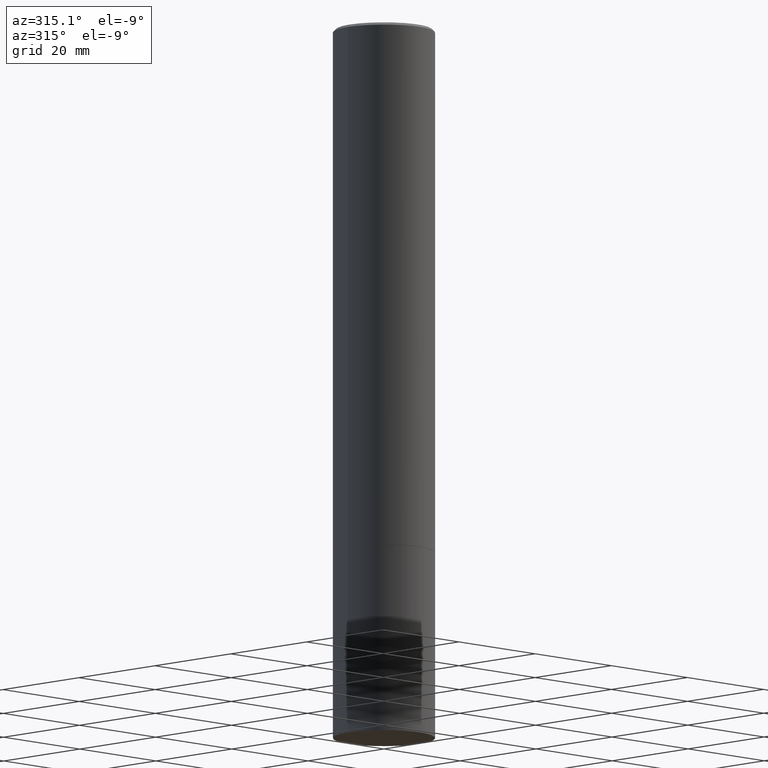
[diagram: clean part render]
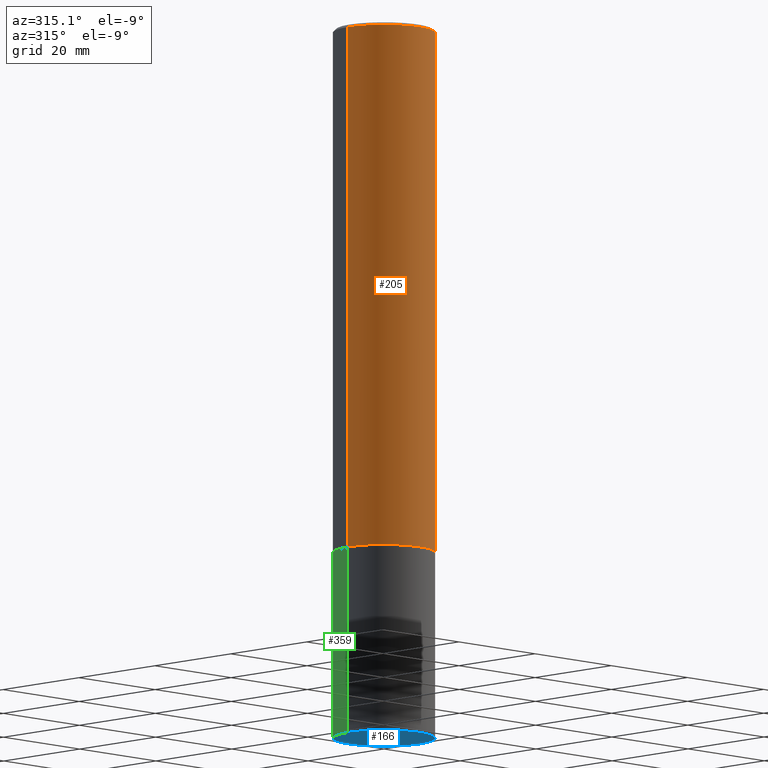
[diagram: same view with three faces highlighted in distinct colors, each labeled with its STEP entity id]
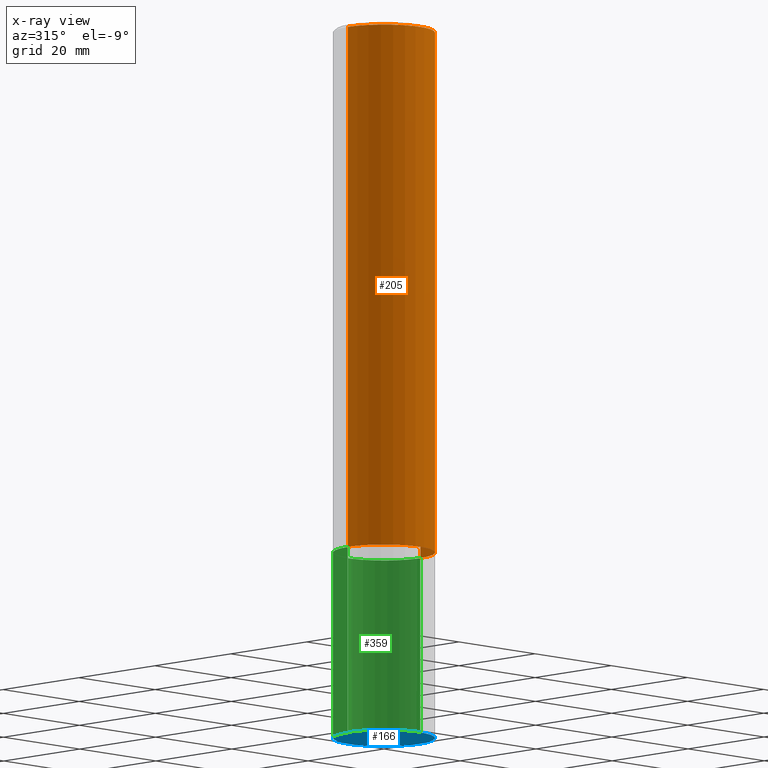
[diagram: x-ray of the same camera — body ghosted, the three highlighted faces saturated]
A machine part, auxiliary view with three faces highlighted in distinct colors.
The next image is the same camera in x-ray (body ghosted, the three faces saturated) — at least one of them is partly hidden behind the body in this view.
Their STEP definitions:

[orange] entity #205 — the highlighted cylindrical surface (partial cylindrical patch) has radius 9.525 mm, axis along (-0, 0, 1).
#7 = EDGE_CURVE ( 'NONE', #70, #92, #247, .T. ) ;
#10 = ORIENTED_EDGE ( 'NONE', *, *, #21, .F. ) ;
#19 = CIRCLE ( 'NONE', #200, 0.3749999999999996669 ) ;
#20 = CARTESIAN_POINT ( 'NONE',  ( -0.3749999999999999445, -4.133378907627225046E-15, -3.874000000000000110 ) ) ;
#21 = EDGE_CURVE ( 'NONE', #197, #65, #19, .T. ) ;
#25 = DIRECTION ( 'NONE',  ( -2.445468806185136597E-29, 3.491481338843145583E-15, 1.000000000000000000 ) ) ;
#27 = EDGE_LOOP ( 'NONE', ( #90, #343, #219, #10 ) ) ;
#47 = CARTESIAN_POINT ( 'NONE',  ( 9.473746155161219831E-29, -1.352599870667834608E-14, -3.874000000000000110 ) ) ;
#48 = CYLINDRICAL_SURFACE ( 'NONE', #63, 0.3749999999999998335 ) ;
#54 = CARTESIAN_POINT ( 'NONE',  ( 0.000000000000000000, 0.000000000000000000, 0.000000000000000000 ) ) ;
#55 = CARTESIAN_POINT ( 'NONE',  ( 0.3749999999999998335, -2.618611004132348439E-15, 1.828566290923475082E-29 ) ) ;
#59 = DIRECTION ( 'NONE',  ( -2.445468806185136877E-29, 3.491481338843145188E-15, 1.000000000000000000 ) ) ;
#63 = AXIS2_PLACEMENT_3D ( 'NONE', #54, #25, #210 ) ;
#65 = VERTEX_POINT ( 'NONE', #236 ) ;
#70 = VERTEX_POINT ( 'NONE', #20 ) ;
#74 = DIRECTION ( 'NONE',  ( 1.000000000000000000, -6.982962677686266711E-15, 0.000000000000000000 ) ) ;
#75 = EDGE_CURVE ( 'NONE', #92, #65, #321, .T. ) ;
#77 = VECTOR ( 'NONE', #268, 39.37007874015748143 ) ;
#79 = CARTESIAN_POINT ( 'NONE',  ( 4.890937612370294178E-31, -6.982962677686321191E-17, -0.02000000000000008715 ) ) ;
#90 = ORIENTED_EDGE ( 'NONE', *, *, #144, .F. ) ;
#92 = VERTEX_POINT ( 'NONE', #102 ) ;
#102 = CARTESIAN_POINT ( 'NONE',  ( 0.3749999999999999445, -1.614460971081069609E-14, -3.874000000000000110 ) ) ;
#104 = DIRECTION ( 'NONE',  ( 1.000000000000000000, -6.982962677686269077E-15, 0.000000000000000000 ) ) ;
#123 = DIRECTION ( 'NONE',  ( -2.445468806185136597E-29, 3.491481338843145583E-15, 1.000000000000000000 ) ) ;
#144 = EDGE_CURVE ( 'NONE', #70, #197, #271, .T. ) ;
#175 = DIRECTION ( 'NONE',  ( -2.445468806185136597E-29, 3.491481338843145583E-15, 1.000000000000000000 ) ) ;
#197 = VERTEX_POINT ( 'NONE', #366 ) ;
#200 = AXIS2_PLACEMENT_3D ( 'NONE', #79, #123, #74 ) ;
#205 = ADVANCED_FACE ( 'NONE', ( #291 ), #48, .T. ) ;
#210 = DIRECTION ( 'NONE',  ( 1.000000000000000000, -6.982962677686265922E-15, 4.876176775795935793E-29 ) ) ;
#213 = CARTESIAN_POINT ( 'NONE',  ( -0.3749999999999998335, 2.664535259100374514E-15, -1.844600658845588757E-29 ) ) ;
#219 = ORIENTED_EDGE ( 'NONE', *, *, #75, .T. ) ;
#236 = CARTESIAN_POINT ( 'NONE',  ( 0.3749999999999996669, -2.642516375941185662E-15, -0.02000000000000008715 ) ) ;
#247 = CIRCLE ( 'NONE', #331, 0.3749999999999999445 ) ;
#268 = DIRECTION ( 'NONE',  ( -2.445468806185136877E-29, 3.491481338843145188E-15, 1.000000000000000000 ) ) ;
#271 = LINE ( 'NONE', #213, #286 ) ;
#286 = VECTOR ( 'NONE', #59, 39.37007874015748143 ) ;
#291 = FACE_OUTER_BOUND ( 'NONE', #27, .T. ) ;
#321 = LINE ( 'NONE', #55, #77 ) ;
#331 = AXIS2_PLACEMENT_3D ( 'NONE', #47, #175, #104 ) ;
#343 = ORIENTED_EDGE ( 'NONE', *, *, #7, .T. ) ;
#366 = CARTESIAN_POINT ( 'NONE',  ( -0.3749999999999996669, 2.548781377355484352E-15, -0.02000000000000008715 ) ) ;

[blue] entity #166 — the highlighted planar face has unit normal (0, -0, -1).
#6 = CARTESIAN_POINT ( 'NONE',  ( 1.283871123247196713E-28, -1.833027702892651322E-14, -5.250000000000000000 ) ) ;
#23 = PLANE ( 'NONE',  #354 ) ;
#38 = ORIENTED_EDGE ( 'NONE', *, *, #318, .F. ) ;
#39 = AXIS2_PLACEMENT_3D ( 'NONE', #6, #112, #301 ) ;
#52 = FACE_OUTER_BOUND ( 'NONE', #317, .T. ) ;
#111 = DIRECTION ( 'NONE',  ( -1.000000000000000000, 6.982962677686265922E-15, -4.876176775795935793E-29 ) ) ;
#112 = DIRECTION ( 'NONE',  ( -2.445468806185136597E-29, 3.491481338843145583E-15, 1.000000000000000000 ) ) ;
#117 = AXIS2_PLACEMENT_3D ( 'NONE', #158, #159, #273 ) ;
#158 = CARTESIAN_POINT ( 'NONE',  ( 1.283871123247196713E-28, -1.833027702892651322E-14, -5.250000000000000000 ) ) ;
#159 = DIRECTION ( 'NONE',  ( -2.445468806185136597E-29, 3.491481338843145583E-15, 1.000000000000000000 ) ) ;
#166 = ADVANCED_FACE ( 'NONE', ( #52 ), #23, .T. ) ;
#187 = CIRCLE ( 'NONE', #39, 0.3750000000000000555 ) ;
#189 = DIRECTION ( 'NONE',  ( 2.438088387897960049E-29, -3.491481338843145188E-15, -1.000000000000000000 ) ) ;
#252 = ORIENTED_EDGE ( 'NONE', *, *, #276, .F. ) ;
#273 = DIRECTION ( 'NONE',  ( 1.000000000000000000, -6.982962677686261189E-15, 0.000000000000000000 ) ) ;
#276 = EDGE_CURVE ( 'NONE', #364, #312, #280, .T. ) ;
#280 = CIRCLE ( 'NONE', #117, 0.3750000000000000555 ) ;
#282 = CARTESIAN_POINT ( 'NONE',  ( 0.3750000000000000555, -2.094888803305886324E-14, -5.250000000000000000 ) ) ;
#301 = DIRECTION ( 'NONE',  ( 1.000000000000000000, -6.982962677686261189E-15, 0.000000000000000000 ) ) ;
#306 = CARTESIAN_POINT ( 'NONE',  ( -0.3750000000000000555, -1.326534834937147625E-14, -5.250000000000000000 ) ) ;
#312 = VERTEX_POINT ( 'NONE', #306 ) ;
#317 = EDGE_LOOP ( 'NONE', ( #252, #38 ) ) ;
#318 = EDGE_CURVE ( 'NONE', #312, #364, #187, .T. ) ;
#354 = AXIS2_PLACEMENT_3D ( 'NONE', #362, #189, #111 ) ;
#362 = CARTESIAN_POINT ( 'NONE',  ( 2.618611004132478601E-15, 0.3749999999999817368, -5.250000000000000888 ) ) ;
#364 = VERTEX_POINT ( 'NONE', #282 ) ;

[green] entity #359 — the highlighted cylindrical surface (partial cylindrical patch) has radius 9.525 mm, axis along (-0, 0, 1).
#17 = ORIENTED_EDGE ( 'NONE', *, *, #180, .T. ) ;
#31 = VECTOR ( 'NONE', #267, 39.37007874015748143 ) ;
#35 = ORIENTED_EDGE ( 'NONE', *, *, #186, .F. ) ;
#83 = AXIS2_PLACEMENT_3D ( 'NONE', #334, #304, #185 ) ;
#91 = DIRECTION ( 'NONE',  ( -2.445468806185136597E-29, 3.491481338843145583E-15, 1.000000000000000000 ) ) ;
#109 = CARTESIAN_POINT ( 'NONE',  ( -0.3750000000000000555, -1.326534834937147625E-14, -3.875000000000000000 ) ) ;
#117 = AXIS2_PLACEMENT_3D ( 'NONE', #158, #159, #273 ) ;
#134 = DIRECTION ( 'NONE',  ( -2.445468806185136877E-29, 3.491481338843145188E-15, 1.000000000000000000 ) ) ;
#137 = AXIS2_PLACEMENT_3D ( 'NONE', #263, #91, #309 ) ;
#158 = CARTESIAN_POINT ( 'NONE',  ( 1.283871123247196713E-28, -1.833027702892651322E-14, -5.250000000000000000 ) ) ;
#159 = DIRECTION ( 'NONE',  ( -2.445468806185136597E-29, 3.491481338843145583E-15, 1.000000000000000000 ) ) ;
#180 = EDGE_CURVE ( 'NONE', #312, #299, #184, .T. ) ;
#182 = VECTOR ( 'NONE', #134, 39.37007874015748143 ) ;
#184 = LINE ( 'NONE', #305, #31 ) ;
#185 = DIRECTION ( 'NONE',  ( 1.000000000000000000, -6.982962677686266711E-15, 0.000000000000000000 ) ) ;
#186 = EDGE_CURVE ( 'NONE', #364, #190, #265, .T. ) ;
#190 = VERTEX_POINT ( 'NONE', #361 ) ;
#222 = CYLINDRICAL_SURFACE ( 'NONE', #137, 0.3750000000000000555 ) ;
#226 = ORIENTED_EDGE ( 'NONE', *, *, #303, .F. ) ;
#230 = EDGE_LOOP ( 'NONE', ( #266, #17, #226, #35 ) ) ;
#248 = FACE_OUTER_BOUND ( 'NONE', #230, .T. ) ;
#263 = CARTESIAN_POINT ( 'NONE',  ( 0.000000000000000000, 0.000000000000000000, 0.000000000000000000 ) ) ;
#265 = LINE ( 'NONE', #330, #182 ) ;
#266 = ORIENTED_EDGE ( 'NONE', *, *, #276, .T. ) ;
#267 = DIRECTION ( 'NONE',  ( -2.445468806185136877E-29, 3.491481338843145188E-15, 1.000000000000000000 ) ) ;
#273 = DIRECTION ( 'NONE',  ( 1.000000000000000000, -6.982962677686261189E-15, 0.000000000000000000 ) ) ;
#276 = EDGE_CURVE ( 'NONE', #364, #312, #280, .T. ) ;
#280 = CIRCLE ( 'NONE', #117, 0.3750000000000000555 ) ;
#282 = CARTESIAN_POINT ( 'NONE',  ( 0.3750000000000000555, -2.094888803305886324E-14, -5.250000000000000000 ) ) ;
#299 = VERTEX_POINT ( 'NONE', #109 ) ;
#303 = EDGE_CURVE ( 'NONE', #190, #299, #363, .T. ) ;
#304 = DIRECTION ( 'NONE',  ( -2.445468806185136597E-29, 3.491481338843145583E-15, 1.000000000000000000 ) ) ;
#305 = CARTESIAN_POINT ( 'NONE',  ( -0.3750000000000000555, 2.664535259100376091E-15, -1.844600658845589598E-29 ) ) ;
#306 = CARTESIAN_POINT ( 'NONE',  ( -0.3750000000000000555, -1.326534834937147625E-14, -5.250000000000000000 ) ) ;
#309 = DIRECTION ( 'NONE',  ( 1.000000000000000000, -6.982962677686265922E-15, 4.876176775795935793E-29 ) ) ;
#312 = VERTEX_POINT ( 'NONE', #306 ) ;
#330 = CARTESIAN_POINT ( 'NONE',  ( 0.3750000000000000555, -2.618611004132350016E-15, 1.828566290923476203E-29 ) ) ;
#334 = CARTESIAN_POINT ( 'NONE',  ( 9.476191623967404313E-29, -1.352949018801718908E-14, -3.875000000000000000 ) ) ;
#359 = ADVANCED_FACE ( 'NONE', ( #248 ), #222, .T. ) ;
#361 = CARTESIAN_POINT ( 'NONE',  ( 0.3750000000000000555, -1.614810119214954068E-14, -3.875000000000000000 ) ) ;
#363 = CIRCLE ( 'NONE', #83, 0.3750000000000000555 ) ;
#364 = VERTEX_POINT ( 'NONE', #282 ) ;